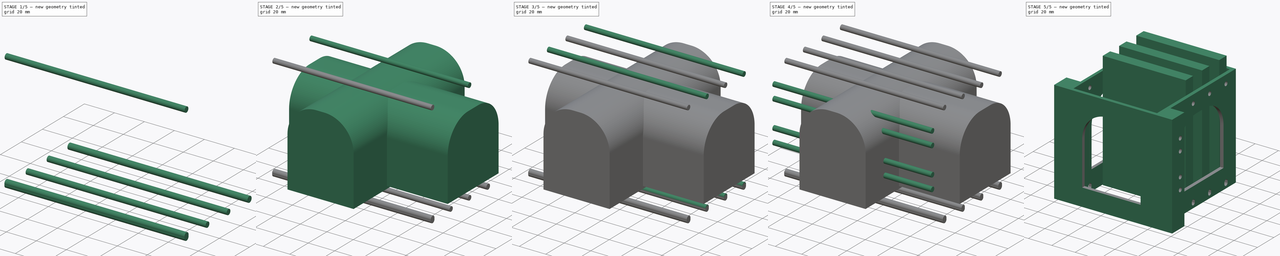
[diagram: build sequence overview — one tinted view per stage of 5, left to right]
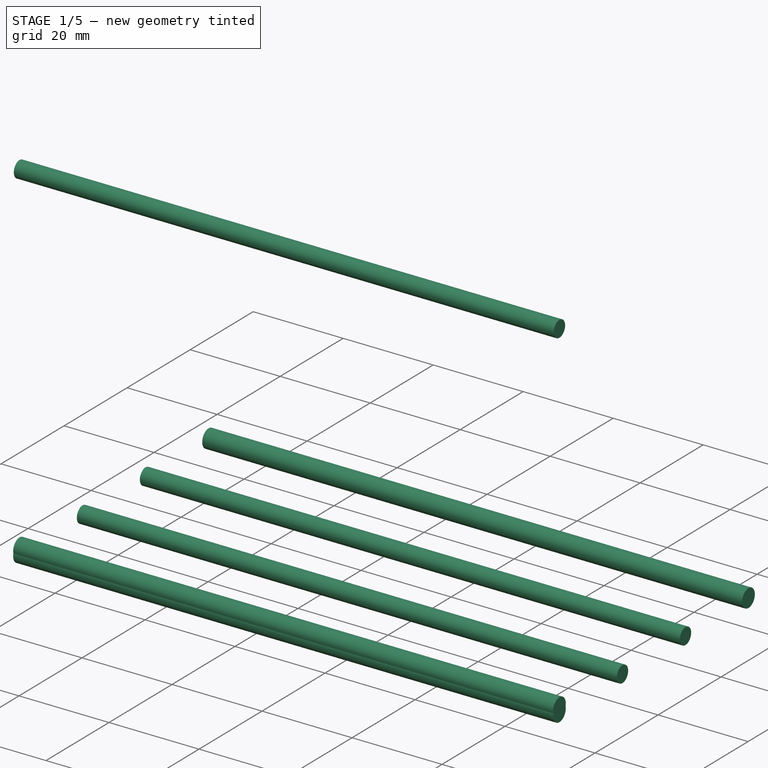
[diagram: stage 1 of 5 — iso view after this stage's code; geometry added in this stage tinted green]
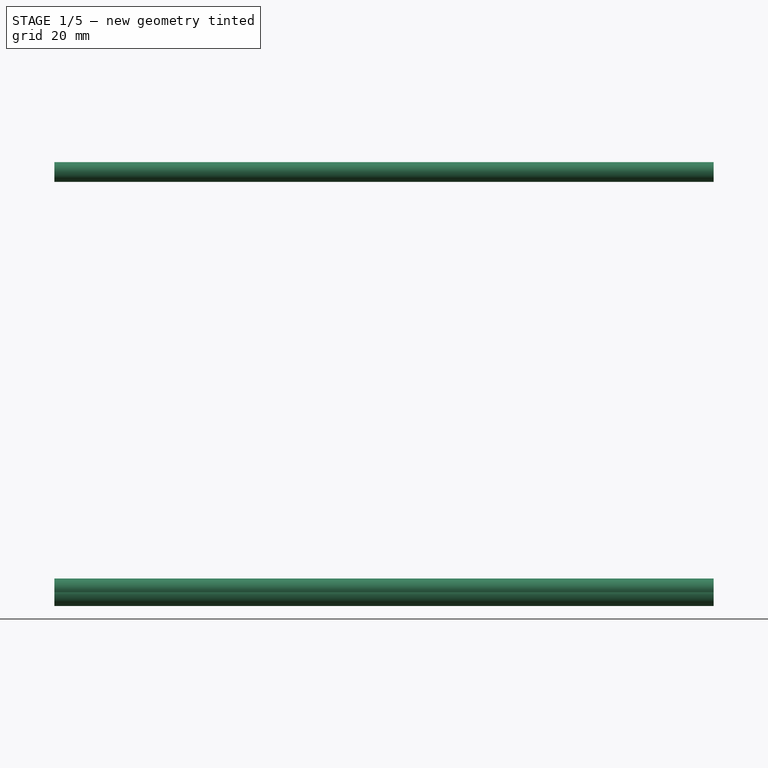
[diagram: stage 1 of 5 — front view after this stage's code; geometry added in this stage tinted green]
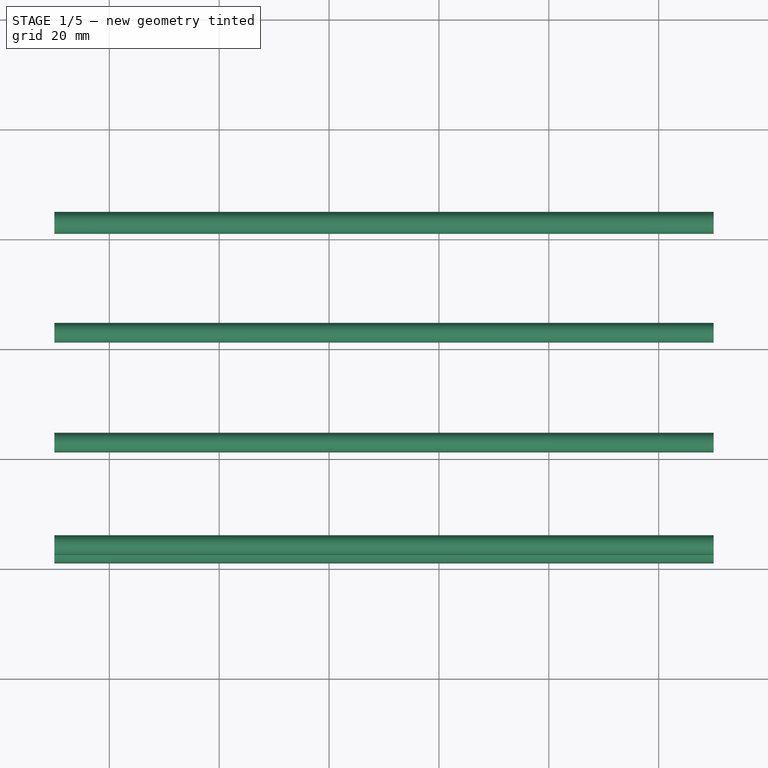
[diagram: stage 1 of 5 — top view after this stage's code; geometry added in this stage tinted green]
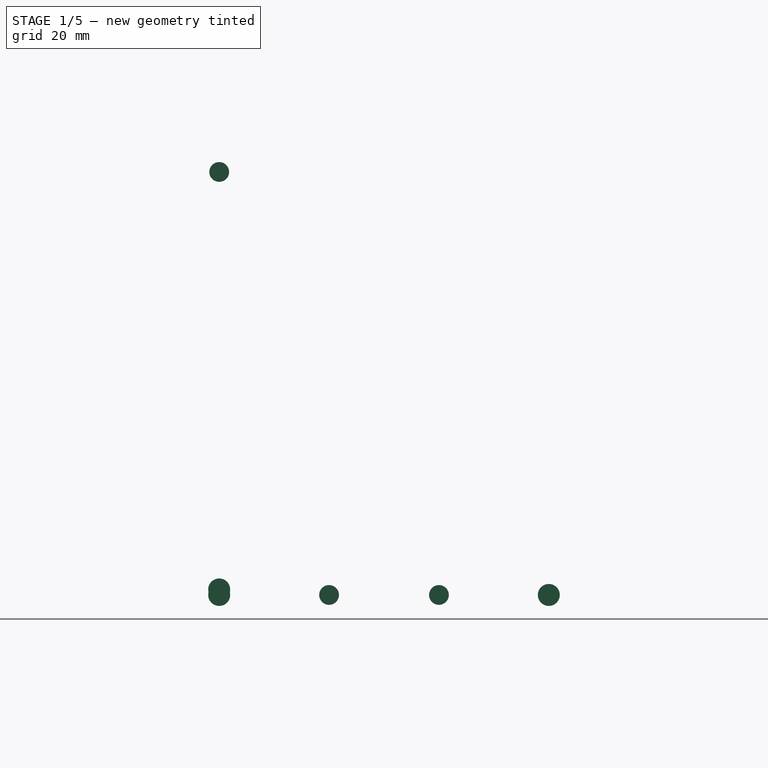
[diagram: stage 1 of 5 — right view after this stage's code; geometry added in this stage tinted green]
FCSTD DOCUMENT  (FreeCAD 0.18R16131 (Git))
Label: hdd_na_ssd+box
License: CreativeCommons Attribution-NonCommercial
LicenseURL: http://creativecommons.org/licenses/by-nc/4.0/
objects: Part::Cylinder×16, Part::Box×5, Part::MultiFuse×3, Part::Fillet×2, Sketcher::SketchObject×1, Part::Extrusion×1, Part::Cut×1
note: 29 computed .brp shape members not serialized (recipe doc carries the construction recipe); baked Part::Feature solids carry a one-line shape summary decoded from their .brp

FEATURE [Part::Cylinder] Cylinder010  label="BCylinder010"
  Angle = 360
  AttacherType = Attacher::AttachEngine3D
  Height = 120
  Placement = pos=(-10,23,5) rot=(0,1,0;1.5708rad)
  Radius = 2
FEATURE [Part::Cylinder] Cylinder011  label="BCylinder011"
  Angle = 360
  AttacherType = Attacher::AttachEngine3D
  Height = 120
  Placement = pos=(-10,23,81) rot=(0,1,0;1.5708rad)
  Radius = 1.8
FEATURE [Part::Cylinder] Cylinder012  label="BCylinder012"
  Angle = 360
  AttacherType = Attacher::AttachEngine3D
  Height = 120
  Placement = pos=(-10,83,4) rot=(0,1,0;1.5708rad)
  Radius = 2
FEATURE [Part::Cylinder] Cylinder013  label="BCylinder013"
  Angle = 360
  AttacherType = Attacher::AttachEngine3D
  Height = 120
  Placement = pos=(-10,43,4) rot=(0,1,0;1.5708rad)
  Radius = 1.8
FEATURE [Part::Cylinder] Cylinder014  label="BCylinder014"
  Angle = 360
  AttacherType = Attacher::AttachEngine3D
  Height = 120
  Placement = pos=(-10,63,4) rot=(0,1,0;1.5708rad)
  Radius = 1.8
FEATURE [Part::Cylinder] Cylinder015  label="BCylinder015"
  Angle = 360
  AttacherType = Attacher::AttachEngine3D
  Height = 120
  Placement = pos=(-10,23,4) rot=(0,1,0;1.5708rad)
  Radius = 2
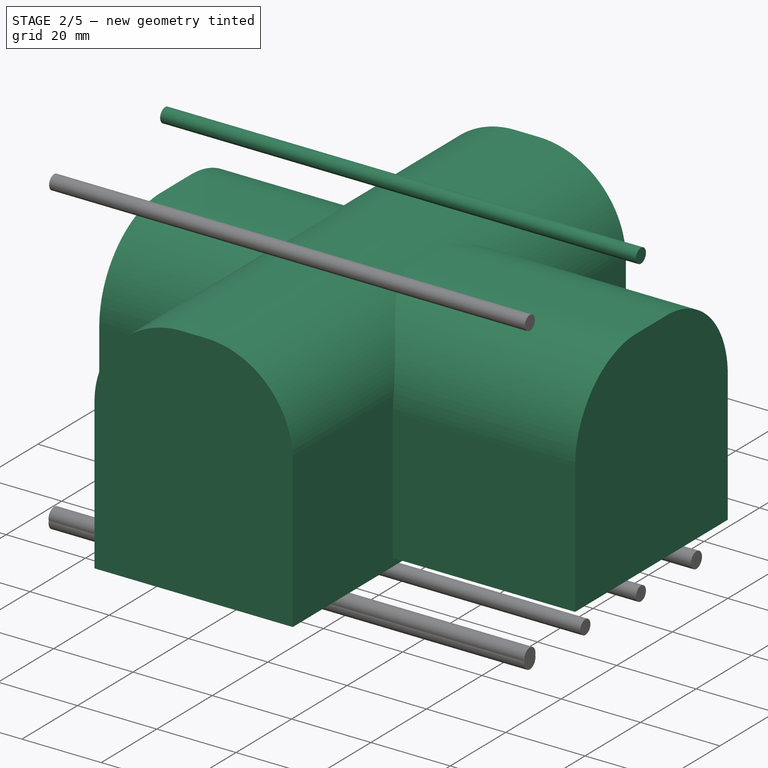
[diagram: stage 2 of 5 — iso view after this stage's code; geometry added in this stage tinted green]
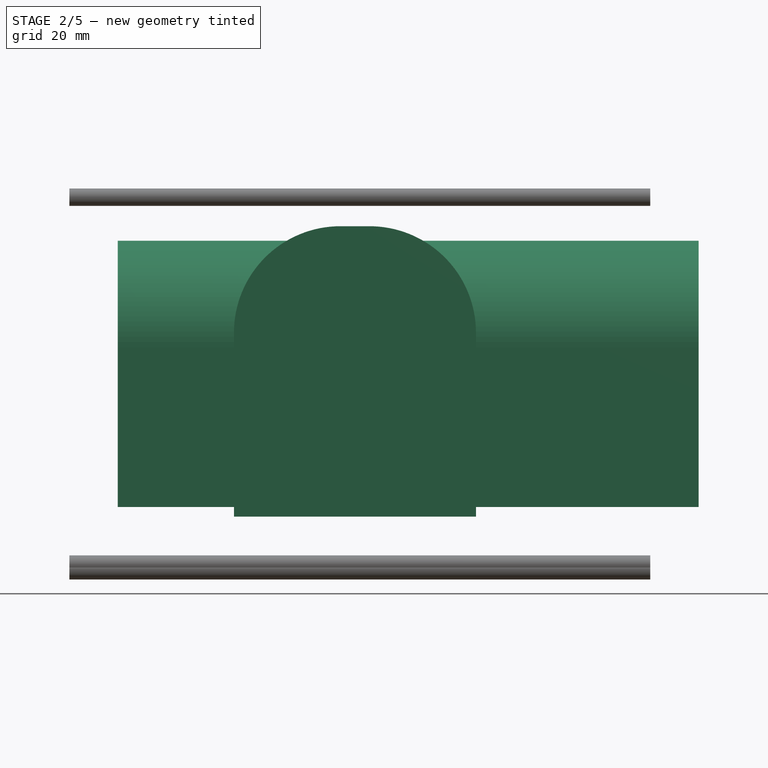
[diagram: stage 2 of 5 — front view after this stage's code; geometry added in this stage tinted green]
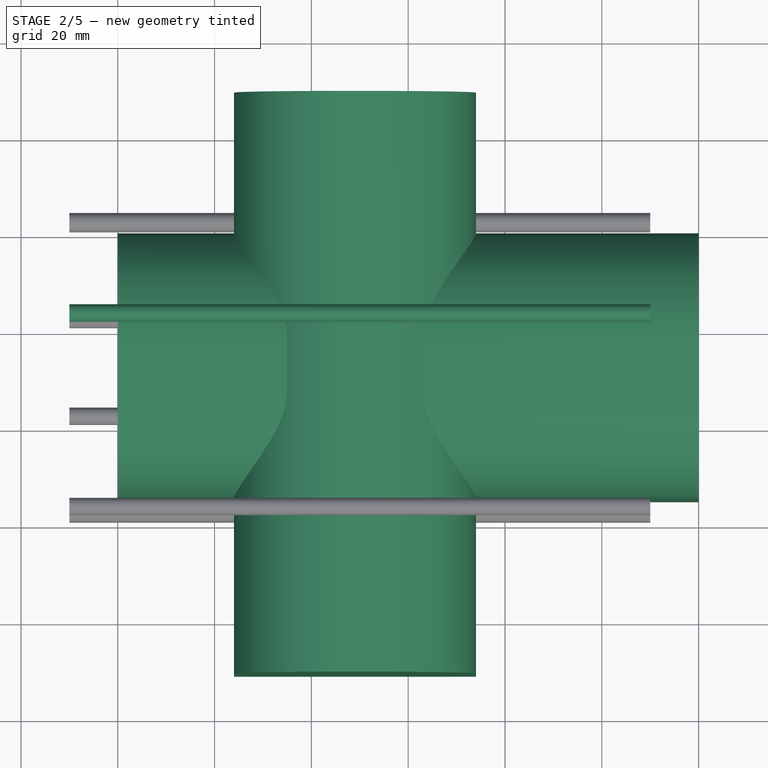
[diagram: stage 2 of 5 — top view after this stage's code; geometry added in this stage tinted green]
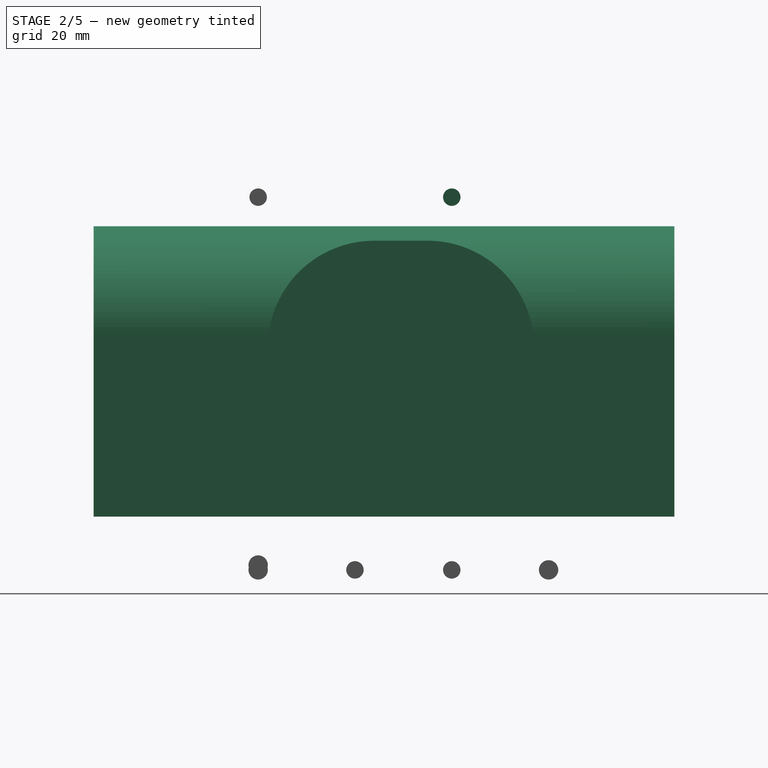
[diagram: stage 2 of 5 — right view after this stage's code; geometry added in this stage tinted green]
FEATURE [Part::Cylinder] Cylinder009  label="BCylinder009"
  Angle = 360
  AttacherType = Attacher::AttachEngine3D
  Height = 120
  Placement = pos=(-10,63,81) rot=(0,1,0;1.5708rad)
  Radius = 1.8
FEATURE [Part::Box] Box003  label="Cube003"
  AttacherType = Attacher::AttachEngine3D
  Height = 55
  Length = 120
  Placement = pos=(0,25,17) rot=(0,0,1;0rad)
  Width = 55
FEATURE [Part::Box] Box004  label="Cube004"
  AttacherType = Attacher::AttachEngine3D
  Height = 60
  Length = 50
  Placement = pos=(24,-11,15) rot=(0,0,1;0rad)
  Width = 120
FEATURE [Part::Fillet] Fillet
  Base = -> Box004
  Edges = 2 edges r=22: [Edge2,Edge6]
FEATURE [Part::Fillet] Fillet001
  Base = -> Box003
  Edges = 2 edges r=22: [Edge10,Edge12]
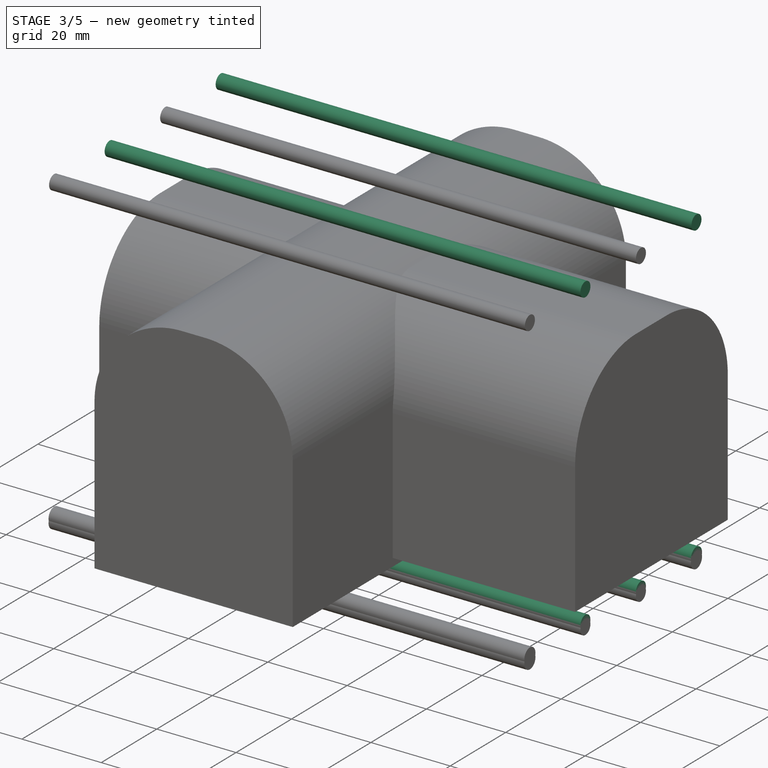
[diagram: stage 3 of 5 — iso view after this stage's code; geometry added in this stage tinted green]
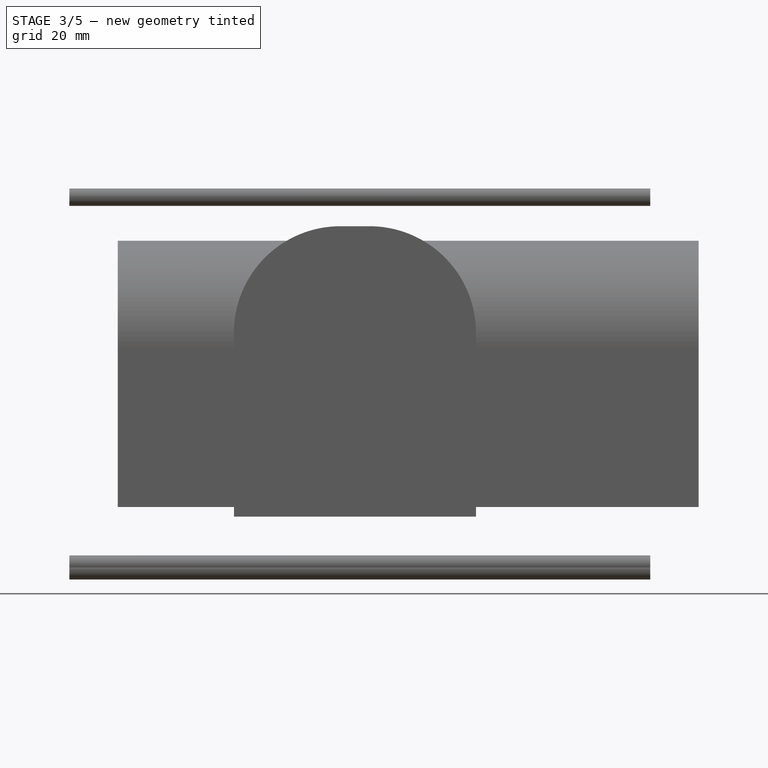
[diagram: stage 3 of 5 — front view after this stage's code; geometry added in this stage tinted green]
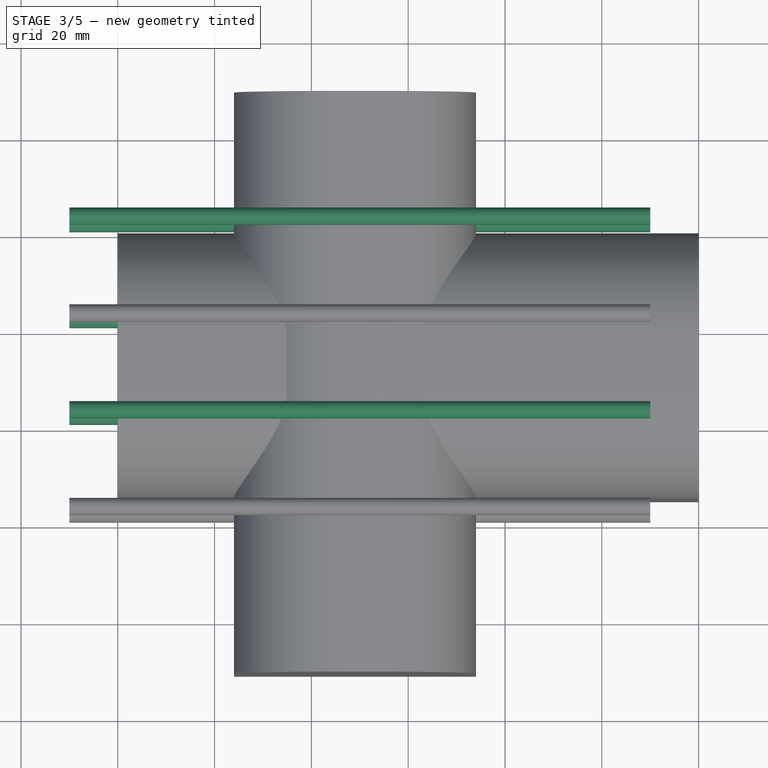
[diagram: stage 3 of 5 — top view after this stage's code; geometry added in this stage tinted green]
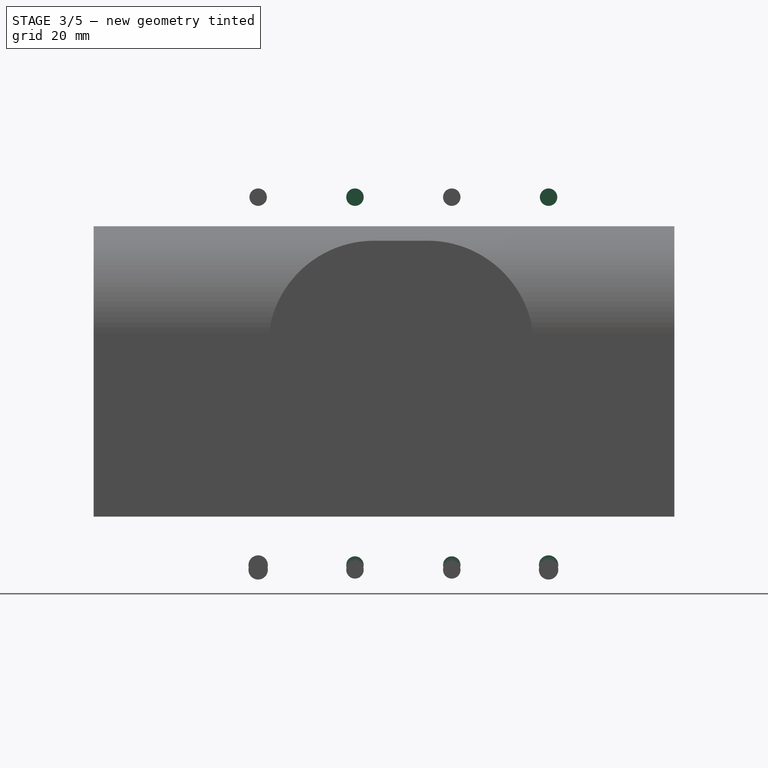
[diagram: stage 3 of 5 — right view after this stage's code; geometry added in this stage tinted green]
FEATURE [Part::Cylinder] Cylinder004  label="BCylinder004"
  Angle = 360
  AttacherType = Attacher::AttachEngine3D
  Height = 120
  Placement = pos=(-10,83,5) rot=(0,1,0;1.5708rad)
  Radius = 2
FEATURE [Part::Cylinder] Cylinder005  label="BCylinder005"
  Angle = 360
  AttacherType = Attacher::AttachEngine3D
  Height = 120
  Placement = pos=(-10,63,5) rot=(0,1,0;1.5708rad)
  Radius = 1.8
FEATURE [Part::Cylinder] Cylinder006  label="BCylinder006"
  Angle = 360
  AttacherType = Attacher::AttachEngine3D
  Height = 120
  Placement = pos=(-10,43,5) rot=(0,1,0;1.5708rad)
  Radius = 1.8
FEATURE [Part::Cylinder] Cylinder007  label="BCylinder007"
  Angle = 360
  AttacherType = Attacher::AttachEngine3D
  Height = 120
  Placement = pos=(-10,83,81) rot=(0,1,0;1.5708rad)
  Radius = 1.8
FEATURE [Part::Cylinder] Cylinder008  label="BCylinder008"
  Angle = 360
  AttacherType = Attacher::AttachEngine3D
  Height = 120
  Placement = pos=(-10,43,81) rot=(0,1,0;1.5708rad)
  Radius = 1.8
FEATURE [Part::MultiFuse] Fusion001
  Shapes = -> [Cylinder004,Cylinder009,Cylinder007,Cylinder008,Cylinder006,Cylinder005,Cylinder010,Cylinder011,Cylinder012,Cylinder013,Cylinder014,Cylinder015]
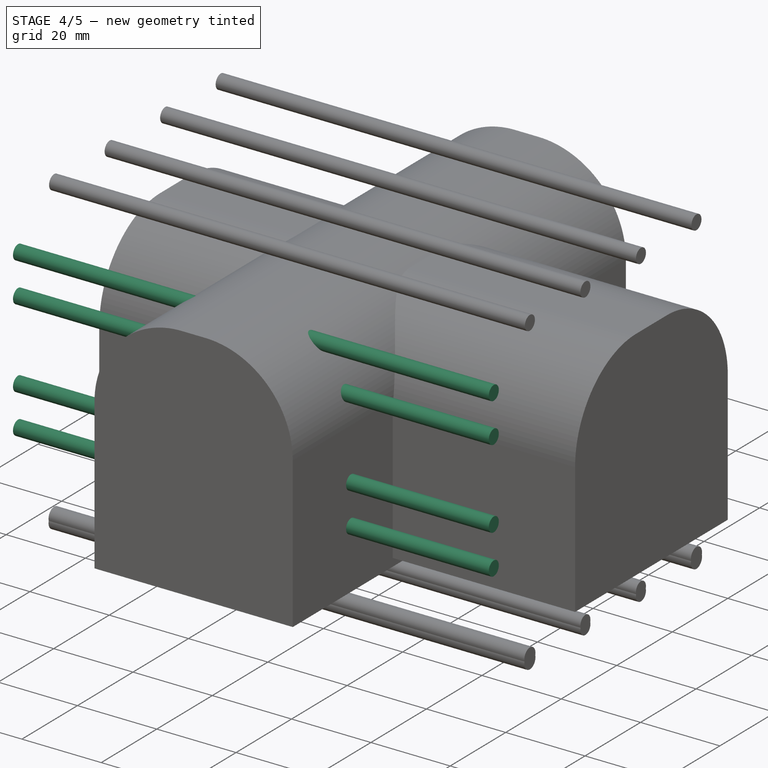
[diagram: stage 4 of 5 — iso view after this stage's code; geometry added in this stage tinted green]
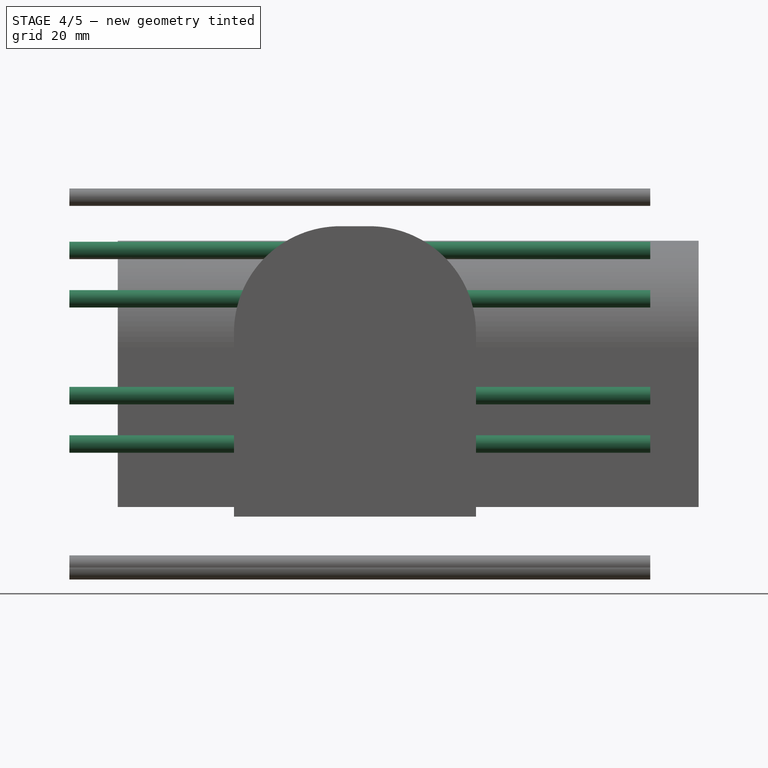
[diagram: stage 4 of 5 — front view after this stage's code; geometry added in this stage tinted green]
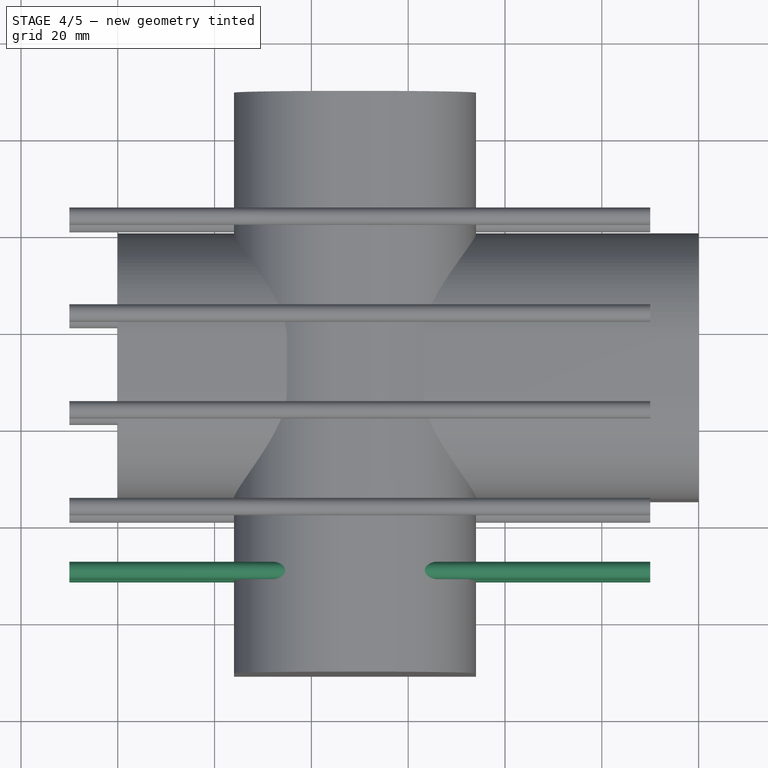
[diagram: stage 4 of 5 — top view after this stage's code; geometry added in this stage tinted green]
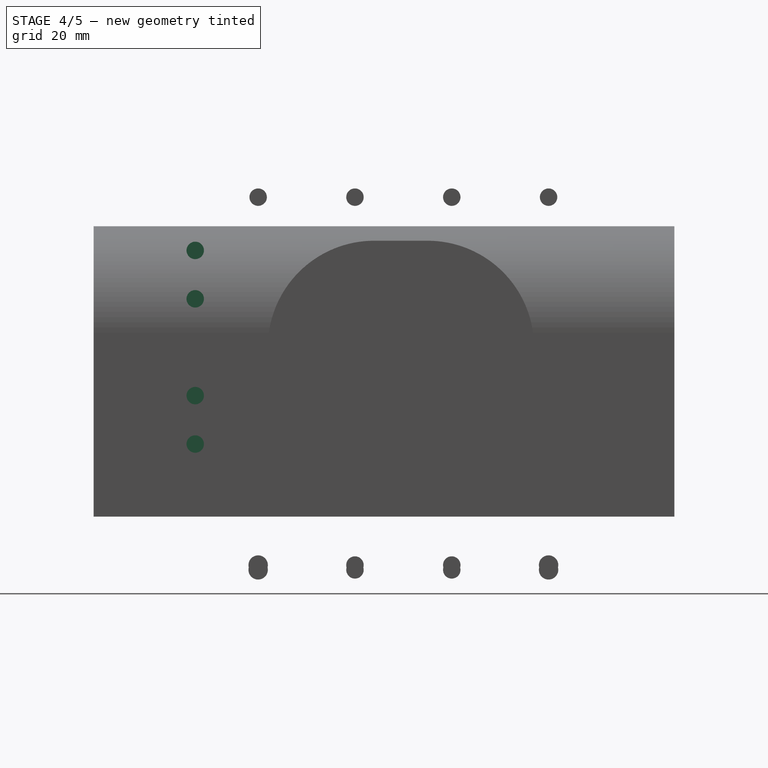
[diagram: stage 4 of 5 — right view after this stage's code; geometry added in this stage tinted green]
FEATURE [Part::Cylinder] Cylinder  label="ACylinder"
  Angle = 360
  AttacherType = Attacher::AttachEngine3D
  Height = 120
  Placement = pos=(-10,10,60) rot=(0,1,0;1.5708rad)
  Radius = 1.8
FEATURE [Part::Cylinder] Cylinder001  label="ACylinder001"
  Angle = 360
  AttacherType = Attacher::AttachEngine3D
  Height = 120
  Placement = pos=(-10,10,30) rot=(0,1,0;1.5708rad)
  Radius = 1.8
FEATURE [Part::Cylinder] Cylinder002  label="ACylinder002"
  Angle = 360
  AttacherType = Attacher::AttachEngine3D
  Height = 120
  Placement = pos=(-10,10,40) rot=(0,1,0;1.5708rad)
  Radius = 1.8
FEATURE [Part::Cylinder] Cylinder003  label="ACylinder003"
  Angle = 360
  AttacherType = Attacher::AttachEngine3D
  Height = 120
  Placement = pos=(-10,10,70) rot=(0,1,0;1.5708rad)
  Radius = 1.8
FEATURE [Part::MultiFuse] Fusion
  Shapes = -> [Cylinder,Cylinder002,Cylinder001,Cylinder003]
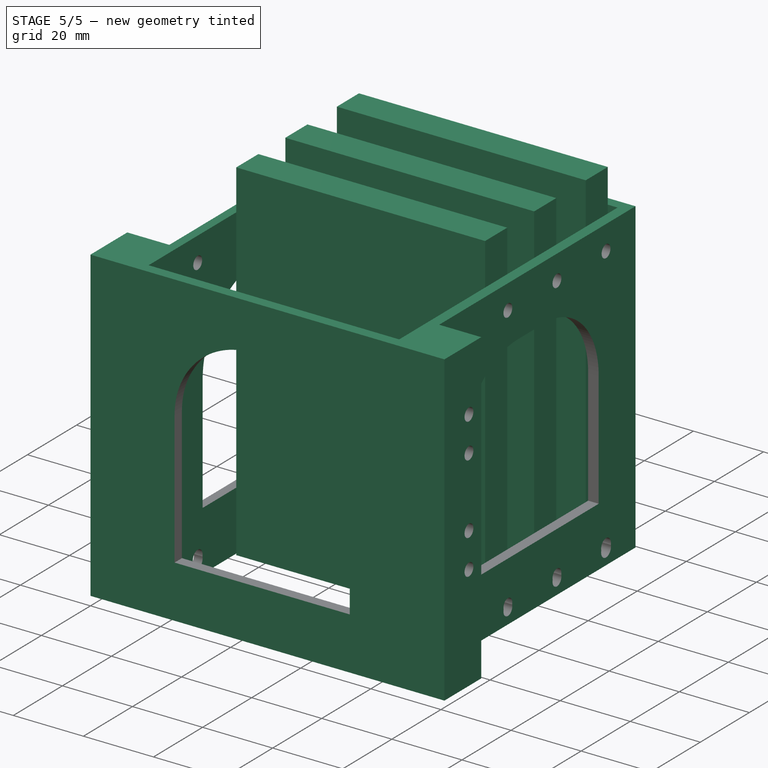
[diagram: stage 5 of 5 — iso view after this stage's code; geometry added in this stage tinted green]
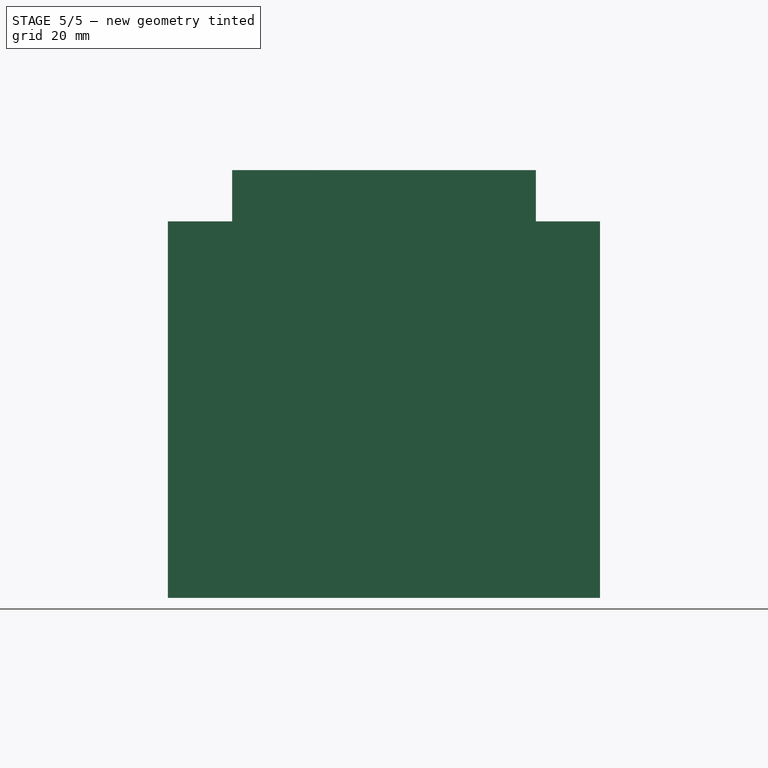
[diagram: stage 5 of 5 — front view after this stage's code; geometry added in this stage tinted green]
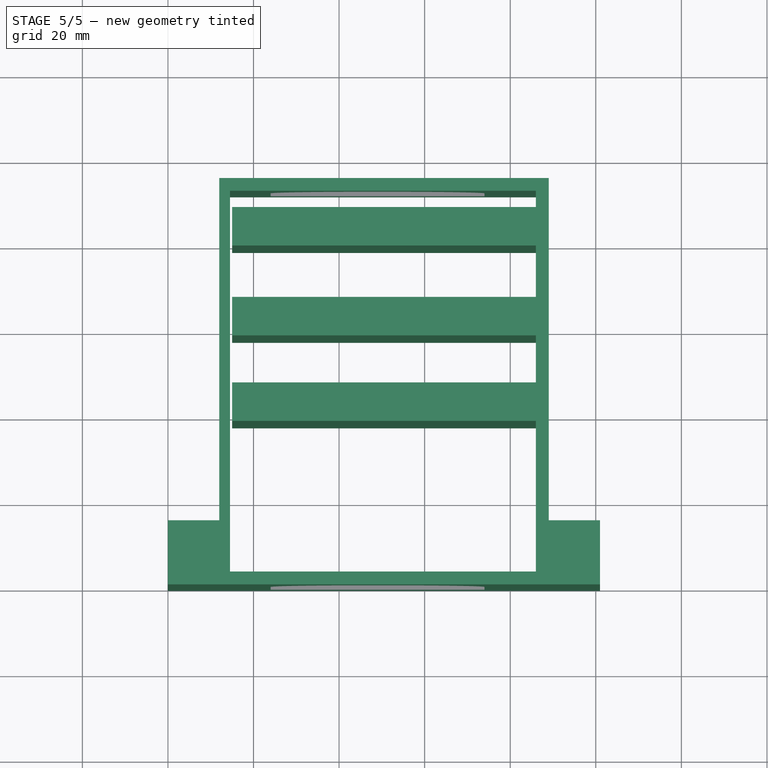
[diagram: stage 5 of 5 — top view after this stage's code; geometry added in this stage tinted green]
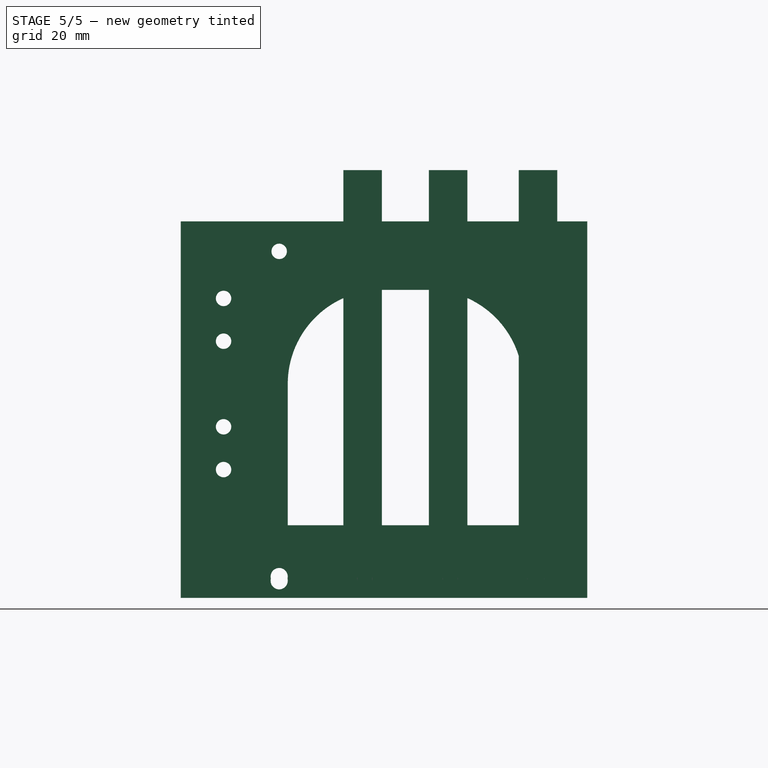
[diagram: stage 5 of 5 — right view after this stage's code; geometry added in this stage tinted green]
FEATURE [Sketcher::SketchObject] Sketch
  sketch-geometry (12):
    g0: LineSegment StartX=0 StartY=0 StartZ=0 EndX=101 EndY=0 EndZ=0
    g1: LineSegment StartX=101 StartY=15 StartZ=0 EndX=101 EndY=0 EndZ=0
    g2: LineSegment StartX=89 StartY=15 StartZ=0 EndX=101 EndY=15 EndZ=0
    g3: LineSegment StartX=89 StartY=95 StartZ=0 EndX=89 EndY=15 EndZ=0
    g4: LineSegment StartX=12 StartY=95 StartZ=0 EndX=89 EndY=95 EndZ=0
    g5: LineSegment StartX=12 StartY=95 StartZ=0 EndX=12 EndY=15 EndZ=0
    g6: LineSegment StartX=12 StartY=15 StartZ=0 EndX=0 EndY=15 EndZ=0
    g7: LineSegment StartX=0 StartY=15 StartZ=0 EndX=0 EndY=0 EndZ=0
    g8: LineSegment StartX=14.5 StartY=3 StartZ=0 EndX=86 EndY=3 EndZ=0
    g9: LineSegment StartX=14.5 StartY=92 StartZ=0 EndX=14.5 EndY=3 EndZ=0
    g10: LineSegment StartX=86 StartY=3 StartZ=0 EndX=86 EndY=92 EndZ=0
    g11: LineSegment StartX=86 StartY=92 StartZ=0 EndX=14.5 EndY=92 EndZ=0
  constraints (41):
    c: Coincident(g7,g0)
    c: Coincident(g0,g1)
    c: Coincident(g6,g7)
    c: Coincident(g5,g6)
    c: Coincident(g2,g3)
    c: Coincident(g1,g2)
    c: Coincident(g4,g5)
    c: Coincident(g3,g4)
    c: DistanceX(g0,g0) = 101
    c: Horizontal(g0)
    c: Horizontal(g6)
    c: Horizontal(g2)
    c: Horizontal(g4)
    c: Vertical(g5)
    c: Vertical(g3)
    c: Vertical(g1)
    c: Vertical(g7)
    c: DistanceX(g4,g4) = 77
    c: DistanceY(g7,g7) = 15
    c: DistanceY(g5,g5) = 80
    c: Equal(g6,g2)
    c: Coincident(g0,g-1)
    c: Horizontal(g8)
    c: Horizontal(g11)
    c: Vertical(g9)
    c: Vertical(g10)
    c: Coincident(g9,g11)
    c: Coincident(g10,g11)
    c: DistanceX(g9,g10) = 71.5
    c: Equal(g2,g6)
    c: Equal(g1,g7)
    c: Equal(g10,g9)
    c: Equal(g2,g6)
    c: Equal(g9,g10)
    c: DistanceY(g9,g9) = 89
    c: Equal(g9,g10)
    c: Distance(g8,g0) = 3
    c: Coincident(g8,g9)
    c: Coincident(g8,g10)
    c: Equal(g6,g2)
    c: Distance(g1,g10) = 15
FEATURE [Part::Extrusion] Extrude
  Base = -> Sketch
  Dir = (0,0,1)
  DirMode = 2
  FaceMakerClass = Part::FaceMakerBullseye
  LengthFwd = 88
  LengthRev = 0
  Solid = true
  Symmetric = false
FEATURE [Part::Box] Box  label="Cube"
  AttacherType = Attacher::AttachEngine3D
  Height = 100
  Length = 71
  Placement = pos=(15,38,0) rot=(0,0,1;0rad)
  Width = 9
FEATURE [Part::Box] Box001  label="Cube001"
  AttacherType = Attacher::AttachEngine3D
  Height = 100
  Length = 71
  Placement = pos=(15,79,0) rot=(0,0,1;0rad)
  Width = 9
FEATURE [Part::Box] Box002  label="Cube002"
  AttacherType = Attacher::AttachEngine3D
  Height = 100
  Length = 71
  Placement = pos=(15,58,0) rot=(0,0,1;0rad)
  Width = 9
FEATURE [Part::MultiFuse] Fusion002
  Shapes = -> [Fusion,Fusion001,Fillet,Fillet001]
FEATURE [Part::Cut] Cut
  Base = -> Extrude
  Tool = -> Fusion002
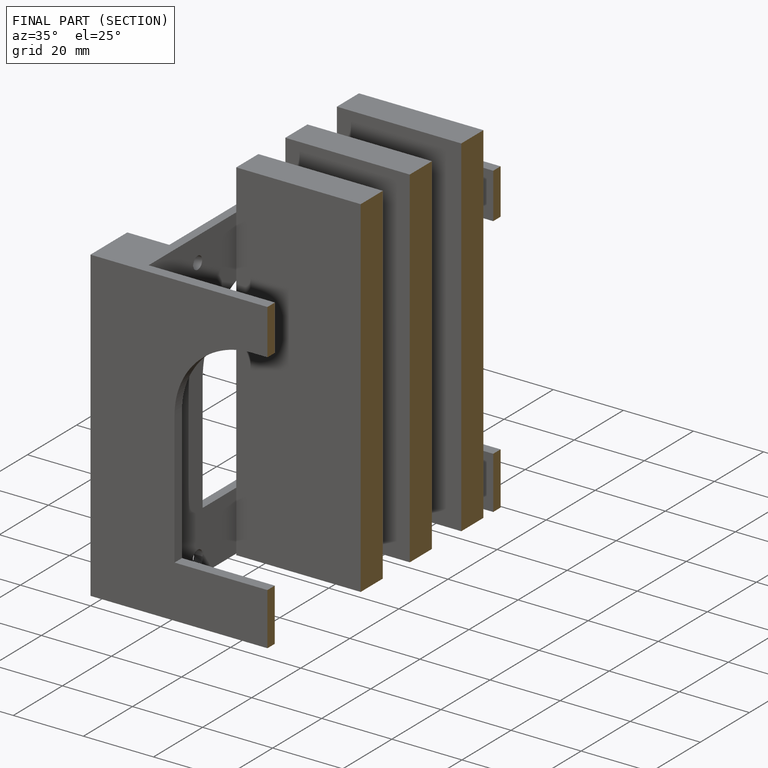
[diagram: finished part — half-section view (interior)]
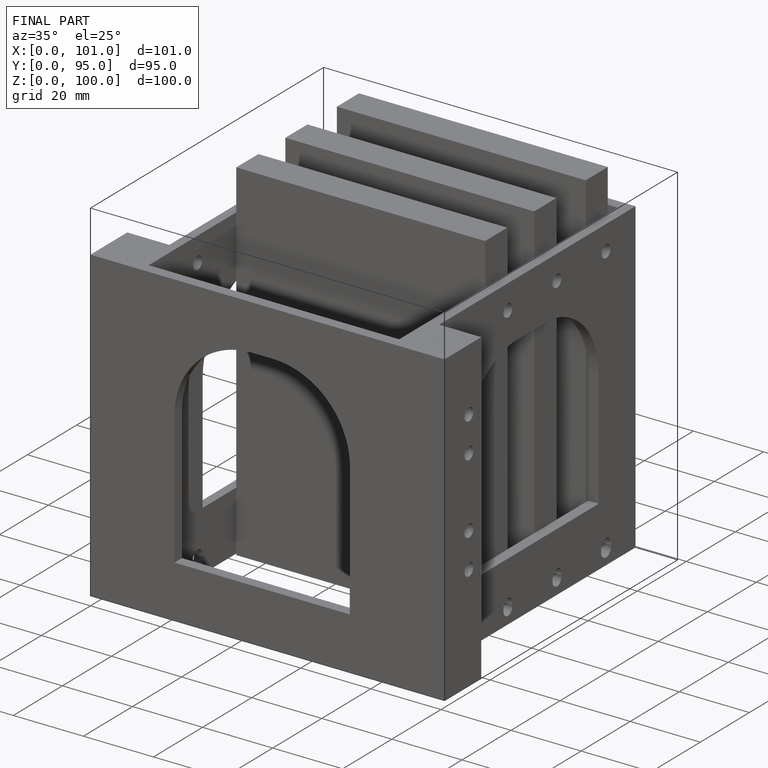
[diagram: finished part — iso view with bounding-box wireframe]
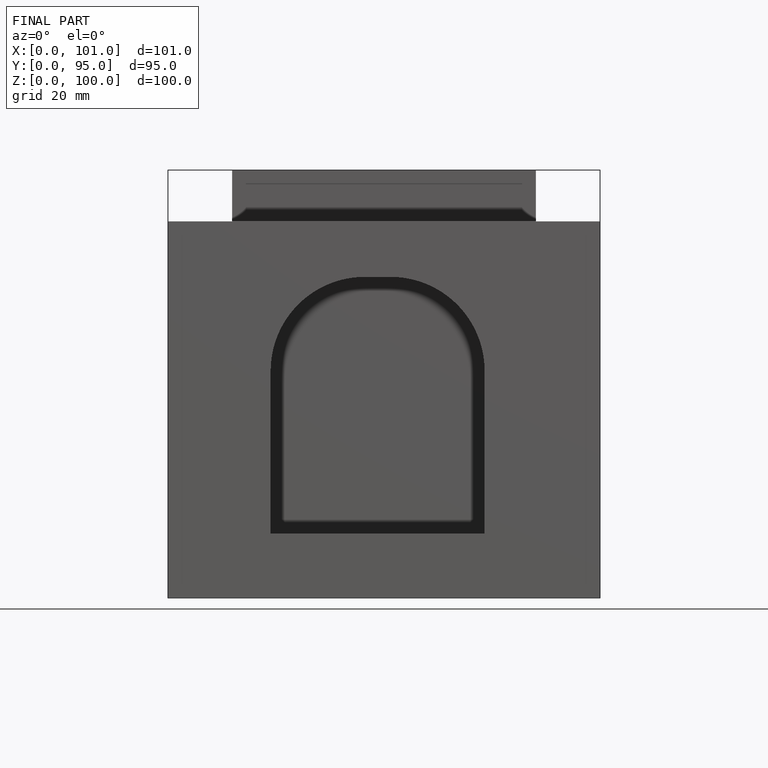
[diagram: finished part — front view with bounding-box wireframe]
